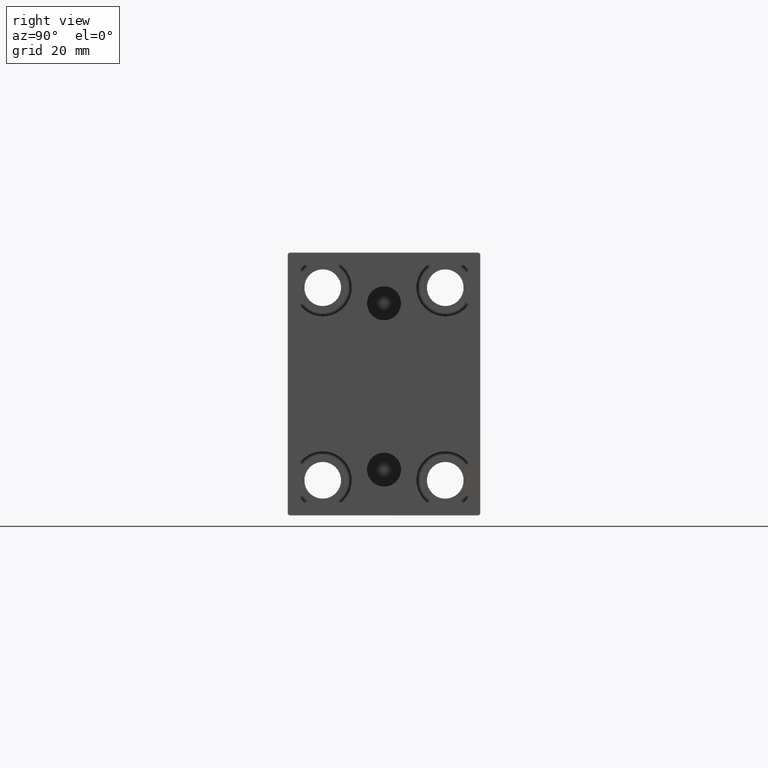
[diagram: clean part render]
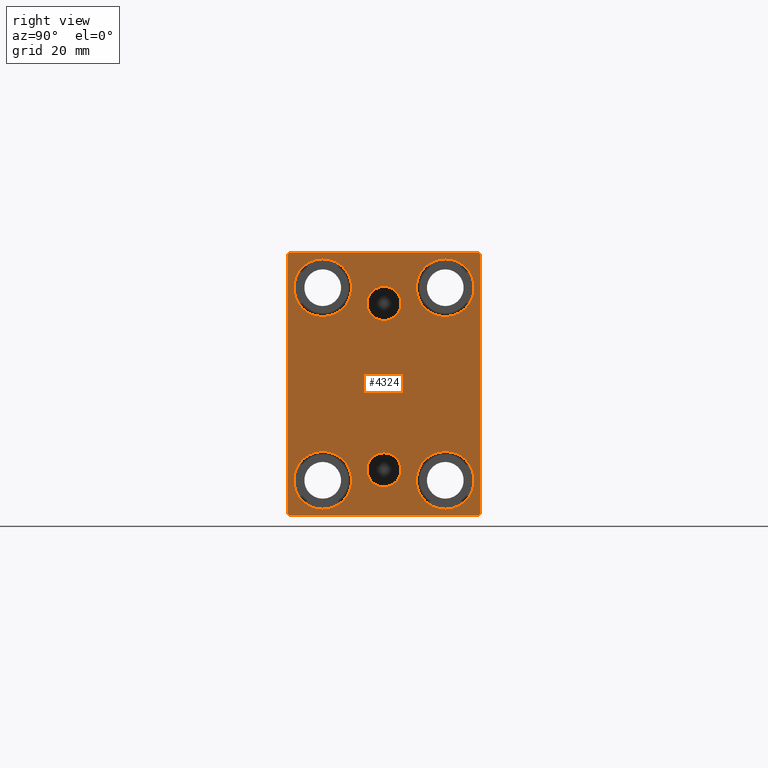
[diagram: same view with one face highlighted and labeled with its STEP entity id]
A machine part, right view. The second image highlights one B-rep face of the part: STEP entity #4324.
In plain terms, the highlighted planar face has unit normal (1, 0, 0).
Its self-contained STEP definition (entity closure, byte-faithful):
#1840 = CIRCLE ( 'NONE', #16641, 4.859999999999999432 ) ;
#2030 = CARTESIAN_POINT ( 'NONE',  ( 175.0000000000000000, -17.49999999999999645, 27.49999999999999645 ) ) ;
#2073 = VERTEX_POINT ( 'NONE', #7353 ) ;
#2372 = VECTOR ( 'NONE', #13264, 1000.000000000000000 ) ;
#2684 = CARTESIAN_POINT ( 'NONE',  ( 175.0000000000000000, -27.50000000000000355, 37.50000000000000000 ) ) ;
#3059 = VECTOR ( 'NONE', #12029, 1000.000000000000114 ) ;
#3198 = CIRCLE ( 'NONE', #10292, 8.249999999999992895 ) ;
#4324 = ADVANCED_FACE ( 'NONE', ( #4857, #11690, #42091, #21819, #15643, #29084, #12332 ), #5065, .T. ) ;
#4546 = LINE ( 'NONE', #27698, #21699 ) ;
#4772 = CARTESIAN_POINT ( 'NONE',  ( 175.0000000000000000, 32.25000000000001421, -32.25000000000001421 ) ) ;
#4857 = FACE_BOUND ( 'NONE', #15993, .T. ) ;
#5065 = PLANE ( 'NONE',  #7007 ) ;
#5212 = CIRCLE ( 'NONE', #29857, 4.859999999999999432 ) ;
#6402 = DIRECTION ( 'NONE',  ( 0.000000000000000000, -9.251858538542970348E-17, 1.000000000000000000 ) ) ;
#6534 = CARTESIAN_POINT ( 'NONE',  ( 175.0000000000000000, -17.50000000000000355, -27.50000000000000355 ) ) ;
#6602 = ORIENTED_EDGE ( 'NONE', *, *, #29811, .T. ) ;
#6922 = AXIS2_PLACEMENT_3D ( 'NONE', #6534, #19977, #37392 ) ;
#7007 = AXIS2_PLACEMENT_3D ( 'NONE', #32397, #18511, #11903 ) ;
#7353 = CARTESIAN_POINT ( 'NONE',  ( 175.0000000000000000, -17.50000000000000355, -19.25000000000000355 ) ) ;
#7367 = VERTEX_POINT ( 'NONE', #35211 ) ;
#7560 = CIRCLE ( 'NONE', #32187, 8.249999999999992895 ) ;
#7581 = EDGE_CURVE ( 'NONE', #42098, #7627, #27527, .T. ) ;
#7627 = VERTEX_POINT ( 'NONE', #41331 ) ;
#7962 = AXIS2_PLACEMENT_3D ( 'NONE', #43314, #42660, #25924 ) ;
#8022 = DIRECTION ( 'NONE',  ( 0.000000000000000000, -1.000000000000000000, -1.261617073437677999E-16 ) ) ;
#8071 = DIRECTION ( 'NONE',  ( -1.000000000000000000, -0.000000000000000000, -0.000000000000000000 ) ) ;
#8321 = CARTESIAN_POINT ( 'NONE',  ( 175.0000000000000000, 17.49999999999999645, -19.25000000000000355 ) ) ;
#8636 = CARTESIAN_POINT ( 'NONE',  ( 175.0000000000000000, 17.50000000000000355, 19.25000000000000000 ) ) ;
#8936 = VECTOR ( 'NONE', #38836, 1000.000000000000000 ) ;
#8975 = DIRECTION ( 'NONE',  ( 1.000000000000000000, 0.000000000000000000, -0.000000000000000000 ) ) ;
#9044 = ORIENTED_EDGE ( 'NONE', *, *, #41444, .T. ) ;
#9192 = DIRECTION ( 'NONE',  ( 0.000000000000000000, 0.000000000000000000, 1.000000000000000000 ) ) ;
#9723 = CARTESIAN_POINT ( 'NONE',  ( 175.0000000000000000, 26.99999999999999645, 37.50000000000000711 ) ) ;
#9729 = AXIS2_PLACEMENT_3D ( 'NONE', #38360, #25141, #25356 ) ;
#9916 = EDGE_LOOP ( 'NONE', ( #6602, #20844 ) ) ;
#9995 = CARTESIAN_POINT ( 'NONE',  ( 175.0000000000000000, -27.50000000000000355, -37.00000000000000000 ) ) ;
#10096 = CARTESIAN_POINT ( 'NONE',  ( 175.0000000000000000, -17.50000000000000355, -27.50000000000000355 ) ) ;
#10292 = AXIS2_PLACEMENT_3D ( 'NONE', #20763, #33999, #20980 ) ;
#10322 = CARTESIAN_POINT ( 'NONE',  ( 175.0000000000000000, -27.50000000000000355, -37.50000000000000000 ) ) ;
#10473 = VERTEX_POINT ( 'NONE', #38808 ) ;
#10565 = VERTEX_POINT ( 'NONE', #29036 ) ;
#10680 = VERTEX_POINT ( 'NONE', #8636 ) ;
#10899 = AXIS2_PLACEMENT_3D ( 'NONE', #14837, #38401, #25614 ) ;
#10900 = CIRCLE ( 'NONE', #20739, 4.859999999999999432 ) ;
#10904 = EDGE_LOOP ( 'NONE', ( #20306, #40853, #23416, #32568, #20258, #21077, #9044, #33229 ) ) ;
#11071 = DIRECTION ( 'NONE',  ( 0.000000000000000000, 0.000000000000000000, 1.000000000000000000 ) ) ;
#11102 = EDGE_CURVE ( 'NONE', #2073, #39971, #41700, .T. ) ;
#11199 = EDGE_LOOP ( 'NONE', ( #35430, #35853 ) ) ;
#11366 = ORIENTED_EDGE ( 'NONE', *, *, #22483, .F. ) ;
#11526 = DIRECTION ( 'NONE',  ( -1.000000000000000000, -0.000000000000000000, -0.000000000000000000 ) ) ;
#11690 = FACE_BOUND ( 'NONE', #20528, .T. ) ;
#11813 = LINE ( 'NONE', #4772, #3059 ) ;
#11903 = DIRECTION ( 'NONE',  ( 0.000000000000000000, 0.000000000000000000, -1.000000000000000000 ) ) ;
#12029 = DIRECTION ( 'NONE',  ( -0.000000000000000000, 0.7071067811865474617, 0.7071067811865474617 ) ) ;
#12072 = EDGE_CURVE ( 'NONE', #17521, #10680, #29052, .T. ) ;
#12332 = FACE_OUTER_BOUND ( 'NONE', #10904, .T. ) ;
#12556 = EDGE_LOOP ( 'NONE', ( #43011, #29687 ) ) ;
#12844 = AXIS2_PLACEMENT_3D ( 'NONE', #10096, #23530, #19785 ) ;
#13135 = CIRCLE ( 'NONE', #37782, 4.859999999999999432 ) ;
#13264 = DIRECTION ( 'NONE',  ( 0.000000000000000000, 0.000000000000000000, -1.000000000000000000 ) ) ;
#14096 = ORIENTED_EDGE ( 'NONE', *, *, #25759, .T. ) ;
#14240 = ORIENTED_EDGE ( 'NONE', *, *, #31254, .F. ) ;
#14432 = EDGE_CURVE ( 'NONE', #16915, #25037, #11813, .T. ) ;
#14837 = CARTESIAN_POINT ( 'NONE',  ( 175.0000000000000000, -17.49999999999999645, 27.49999999999999645 ) ) ;
#15643 = FACE_BOUND ( 'NONE', #9916, .T. ) ;
#15771 = CARTESIAN_POINT ( 'NONE',  ( 175.0000000000000000, 27.49999999999999645, 37.00000000000001421 ) ) ;
#15811 = CARTESIAN_POINT ( 'NONE',  ( 175.0000000000000000, -3.571693674697836683E-15, 23.00000000000000711 ) ) ;
#15842 = CARTESIAN_POINT ( 'NONE',  ( 175.0000000000000000, -3.571693674697836683E-15, 23.00000000000000711 ) ) ;
#15993 = EDGE_LOOP ( 'NONE', ( #14240, #42253 ) ) ;
#16641 = AXIS2_PLACEMENT_3D ( 'NONE', #15842, #29281, #32373 ) ;
#16759 = VECTOR ( 'NONE', #6402, 1000.000000000000000 ) ;
#16760 = CARTESIAN_POINT ( 'NONE',  ( 175.0000000000000000, 3.000384657911015074E-15, -29.35999999999999233 ) ) ;
#16915 = VERTEX_POINT ( 'NONE', #38311 ) ;
#17493 = CARTESIAN_POINT ( 'NONE',  ( 175.0000000000000000, -17.49999999999999645, 35.74999999999999289 ) ) ;
#17521 = VERTEX_POINT ( 'NONE', #20539 ) ;
#17986 = DIRECTION ( 'NONE',  ( -0.000000000000000000, -0.7071067811865524577, 0.7071067811865426878 ) ) ;
#18102 = DIRECTION ( 'NONE',  ( 1.000000000000000000, 0.000000000000000000, -0.000000000000000000 ) ) ;
#18511 = DIRECTION ( 'NONE',  ( 1.000000000000000000, 0.000000000000000000, 0.000000000000000000 ) ) ;
#19332 = VERTEX_POINT ( 'NONE', #40360 ) ;
#19703 = EDGE_CURVE ( 'NONE', #37504, #10473, #24554, .T. ) ;
#19758 = DIRECTION ( 'NONE',  ( 1.000000000000000000, 0.000000000000000000, 0.000000000000000000 ) ) ;
#19785 = DIRECTION ( 'NONE',  ( 0.000000000000000000, 0.000000000000000000, 1.000000000000000000 ) ) ;
#19943 = EDGE_CURVE ( 'NONE', #30792, #26602, #43446, .T. ) ;
#19977 = DIRECTION ( 'NONE',  ( -1.000000000000000000, -0.000000000000000000, -0.000000000000000000 ) ) ;
#20258 = ORIENTED_EDGE ( 'NONE', *, *, #31347, .T. ) ;
#20306 = ORIENTED_EDGE ( 'NONE', *, *, #19703, .T. ) ;
#20528 = EDGE_LOOP ( 'NONE', ( #33170, #11366 ) ) ;
#20539 = CARTESIAN_POINT ( 'NONE',  ( 175.0000000000000000, 17.50000000000000355, 35.74999999999999289 ) ) ;
#20663 = DIRECTION ( 'NONE',  ( 0.000000000000000000, 1.000000000000000000, 0.000000000000000000 ) ) ;
#20739 = AXIS2_PLACEMENT_3D ( 'NONE', #38587, #18102, #11071 ) ;
#20763 = CARTESIAN_POINT ( 'NONE',  ( 175.0000000000000000, 17.50000000000000355, 27.49999999999999645 ) ) ;
#20844 = ORIENTED_EDGE ( 'NONE', *, *, #12072, .T. ) ;
#20980 = DIRECTION ( 'NONE',  ( 0.000000000000000000, 0.000000000000000000, 1.000000000000000000 ) ) ;
#21068 = VERTEX_POINT ( 'NONE', #30799 ) ;
#21077 = ORIENTED_EDGE ( 'NONE', *, *, #14432, .T. ) ;
#21279 = CARTESIAN_POINT ( 'NONE',  ( 175.0000000000000000, 17.49999999999999645, -27.50000000000000355 ) ) ;
#21699 = VECTOR ( 'NONE', #17986, 1000.000000000000000 ) ;
#21819 = FACE_BOUND ( 'NONE', #35583, .T. ) ;
#22483 = EDGE_CURVE ( 'NONE', #19332, #23739, #10900, .T. ) ;
#22836 = CARTESIAN_POINT ( 'NONE',  ( 175.0000000000000000, 3.000384657911015074E-15, -24.49999999999999289 ) ) ;
#23416 = ORIENTED_EDGE ( 'NONE', *, *, #19943, .T. ) ;
#23530 = DIRECTION ( 'NONE',  ( -1.000000000000000000, -0.000000000000000000, -0.000000000000000000 ) ) ;
#23739 = VERTEX_POINT ( 'NONE', #16760 ) ;
#23896 = CARTESIAN_POINT ( 'NONE',  ( 175.0000000000000000, 27.49999999999999645, 37.50000000000000711 ) ) ;
#24483 = CIRCLE ( 'NONE', #9729, 8.250000000000000000 ) ;
#24552 = LINE ( 'NONE', #38625, #8936 ) ;
#24554 = LINE ( 'NONE', #23896, #42496 ) ;
#24729 = CARTESIAN_POINT ( 'NONE',  ( 175.0000000000000000, -27.50000000000000355, 37.00000000000000000 ) ) ;
#25037 = VERTEX_POINT ( 'NONE', #40124 ) ;
#25141 = DIRECTION ( 'NONE',  ( -1.000000000000000000, -0.000000000000000000, -0.000000000000000000 ) ) ;
#25214 = CARTESIAN_POINT ( 'NONE',  ( 175.0000000000000000, -17.50000000000000355, -35.75000000000000711 ) ) ;
#25356 = DIRECTION ( 'NONE',  ( 0.000000000000000000, 0.000000000000000000, 1.000000000000000000 ) ) ;
#25614 = DIRECTION ( 'NONE',  ( 0.000000000000000000, 0.000000000000000000, 1.000000000000000000 ) ) ;
#25615 = DIRECTION ( 'NONE',  ( 0.000000000000000000, 0.000000000000000000, 1.000000000000000000 ) ) ;
#25621 = EDGE_CURVE ( 'NONE', #23739, #19332, #5212, .T. ) ;
#25725 = VERTEX_POINT ( 'NONE', #17493 ) ;
#25759 = EDGE_CURVE ( 'NONE', #21068, #25725, #32722, .T. ) ;
#25924 = DIRECTION ( 'NONE',  ( 0.000000000000000000, 0.000000000000000000, 1.000000000000000000 ) ) ;
#26554 = LINE ( 'NONE', #43081, #28530 ) ;
#26594 = DIRECTION ( 'NONE',  ( 0.000000000000000000, 0.000000000000000000, -1.000000000000000000 ) ) ;
#26602 = VERTEX_POINT ( 'NONE', #9995 ) ;
#26842 = LINE ( 'NONE', #10322, #27216 ) ;
#27216 = VECTOR ( 'NONE', #20663, 1000.000000000000000 ) ;
#27527 = CIRCLE ( 'NONE', #33157, 8.250000000000000000 ) ;
#27698 = CARTESIAN_POINT ( 'NONE',  ( 175.0000000000000000, 32.24999999999981526, 32.25000000000025580 ) ) ;
#28530 = VECTOR ( 'NONE', #36692, 1000.000000000000114 ) ;
#29036 = CARTESIAN_POINT ( 'NONE',  ( 175.0000000000000000, -3.571693674697836683E-15, 18.14000000000000767 ) ) ;
#29052 = CIRCLE ( 'NONE', #7962, 8.249999999999992895 ) ;
#29084 = FACE_BOUND ( 'NONE', #12556, .T. ) ;
#29281 = DIRECTION ( 'NONE',  ( 1.000000000000000000, 0.000000000000000000, 0.000000000000000000 ) ) ;
#29548 = EDGE_CURVE ( 'NONE', #10473, #30792, #26554, .T. ) ;
#29599 = VERTEX_POINT ( 'NONE', #15771 ) ;
#29687 = ORIENTED_EDGE ( 'NONE', *, *, #11102, .T. ) ;
#29811 = EDGE_CURVE ( 'NONE', #10680, #17521, #3198, .T. ) ;
#29857 = AXIS2_PLACEMENT_3D ( 'NONE', #22836, #8975, #9192 ) ;
#30792 = VERTEX_POINT ( 'NONE', #24729 ) ;
#30799 = CARTESIAN_POINT ( 'NONE',  ( 175.0000000000000000, -17.49999999999999645, 19.25000000000000000 ) ) ;
#31254 = EDGE_CURVE ( 'NONE', #10565, #41133, #1840, .T. ) ;
#31347 = EDGE_CURVE ( 'NONE', #7367, #16915, #26842, .T. ) ;
#32187 = AXIS2_PLACEMENT_3D ( 'NONE', #2030, #11526, #25615 ) ;
#32373 = DIRECTION ( 'NONE',  ( 0.000000000000000000, 0.000000000000000000, -1.000000000000000000 ) ) ;
#32397 = CARTESIAN_POINT ( 'NONE',  ( 175.0000000000000000, 0.000000000000000000, 0.000000000000000000 ) ) ;
#32419 = ORIENTED_EDGE ( 'NONE', *, *, #35321, .T. ) ;
#32568 = ORIENTED_EDGE ( 'NONE', *, *, #33936, .T. ) ;
#32722 = CIRCLE ( 'NONE', #10899, 8.249999999999992895 ) ;
#33157 = AXIS2_PLACEMENT_3D ( 'NONE', #21279, #8071, #37382 ) ;
#33170 = ORIENTED_EDGE ( 'NONE', *, *, #25621, .F. ) ;
#33229 = ORIENTED_EDGE ( 'NONE', *, *, #37111, .T. ) ;
#33545 = EDGE_CURVE ( 'NONE', #41133, #10565, #13135, .T. ) ;
#33936 = EDGE_CURVE ( 'NONE', #26602, #7367, #24552, .T. ) ;
#33999 = DIRECTION ( 'NONE',  ( -1.000000000000000000, -0.000000000000000000, -0.000000000000000000 ) ) ;
#34012 = CARTESIAN_POINT ( 'NONE',  ( 175.0000000000000000, -2.976515330312223406E-15, 27.86000000000000654 ) ) ;
#35211 = CARTESIAN_POINT ( 'NONE',  ( 175.0000000000000000, -26.99999999999997513, -37.50000000000000000 ) ) ;
#35321 = EDGE_CURVE ( 'NONE', #25725, #21068, #7560, .T. ) ;
#35430 = ORIENTED_EDGE ( 'NONE', *, *, #36466, .T. ) ;
#35583 = EDGE_LOOP ( 'NONE', ( #14096, #32419 ) ) ;
#35853 = ORIENTED_EDGE ( 'NONE', *, *, #7581, .T. ) ;
#36466 = EDGE_CURVE ( 'NONE', #7627, #42098, #24483, .T. ) ;
#36602 = LINE ( 'NONE', #40113, #16759 ) ;
#36692 = DIRECTION ( 'NONE',  ( 0.000000000000000000, -0.7071067811865474617, -0.7071067811865474617 ) ) ;
#37014 = EDGE_CURVE ( 'NONE', #39971, #2073, #39282, .T. ) ;
#37111 = EDGE_CURVE ( 'NONE', #29599, #37504, #4546, .T. ) ;
#37382 = DIRECTION ( 'NONE',  ( 0.000000000000000000, 0.000000000000000000, 1.000000000000000000 ) ) ;
#37392 = DIRECTION ( 'NONE',  ( 0.000000000000000000, 0.000000000000000000, 1.000000000000000000 ) ) ;
#37504 = VERTEX_POINT ( 'NONE', #9723 ) ;
#37782 = AXIS2_PLACEMENT_3D ( 'NONE', #15811, #19758, #26594 ) ;
#38311 = CARTESIAN_POINT ( 'NONE',  ( 175.0000000000000000, 27.00000000000003197, -37.50000000000000000 ) ) ;
#38360 = CARTESIAN_POINT ( 'NONE',  ( 175.0000000000000000, 17.49999999999999645, -27.50000000000000355 ) ) ;
#38401 = DIRECTION ( 'NONE',  ( -1.000000000000000000, -0.000000000000000000, -0.000000000000000000 ) ) ;
#38587 = CARTESIAN_POINT ( 'NONE',  ( 175.0000000000000000, 3.000384657911015074E-15, -24.49999999999999289 ) ) ;
#38625 = CARTESIAN_POINT ( 'NONE',  ( 175.0000000000000000, -32.24999999999923972, -32.25000000000103029 ) ) ;
#38808 = CARTESIAN_POINT ( 'NONE',  ( 175.0000000000000000, -27.00000000000000355, 37.50000000000000000 ) ) ;
#38836 = DIRECTION ( 'NONE',  ( -0.000000000000000000, 0.7071067811865672237, -0.7071067811865279218 ) ) ;
#39282 = CIRCLE ( 'NONE', #6922, 8.250000000000000000 ) ;
#39971 = VERTEX_POINT ( 'NONE', #25214 ) ;
#40113 = CARTESIAN_POINT ( 'NONE',  ( 175.0000000000000000, 27.50000000000000355, -37.50000000000000000 ) ) ;
#40124 = CARTESIAN_POINT ( 'NONE',  ( 175.0000000000000000, 27.50000000000000355, -37.00000000000002842 ) ) ;
#40360 = CARTESIAN_POINT ( 'NONE',  ( 175.0000000000000000, 3.595563002296627957E-15, -19.63999999999999346 ) ) ;
#40853 = ORIENTED_EDGE ( 'NONE', *, *, #29548, .T. ) ;
#41133 = VERTEX_POINT ( 'NONE', #34012 ) ;
#41331 = CARTESIAN_POINT ( 'NONE',  ( 175.0000000000000000, 17.49999999999999645, -35.75000000000000711 ) ) ;
#41444 = EDGE_CURVE ( 'NONE', #25037, #29599, #36602, .T. ) ;
#41700 = CIRCLE ( 'NONE', #12844, 8.250000000000000000 ) ;
#42091 = FACE_BOUND ( 'NONE', #11199, .T. ) ;
#42098 = VERTEX_POINT ( 'NONE', #8321 ) ;
#42253 = ORIENTED_EDGE ( 'NONE', *, *, #33545, .F. ) ;
#42496 = VECTOR ( 'NONE', #8022, 1000.000000000000000 ) ;
#42660 = DIRECTION ( 'NONE',  ( -1.000000000000000000, -0.000000000000000000, -0.000000000000000000 ) ) ;
#43011 = ORIENTED_EDGE ( 'NONE', *, *, #37014, .T. ) ;
#43081 = CARTESIAN_POINT ( 'NONE',  ( 175.0000000000000000, -32.25000000000000000, 32.25000000000000000 ) ) ;
#43314 = CARTESIAN_POINT ( 'NONE',  ( 175.0000000000000000, 17.50000000000000355, 27.49999999999999645 ) ) ;
#43446 = LINE ( 'NONE', #2684, #2372 ) ;